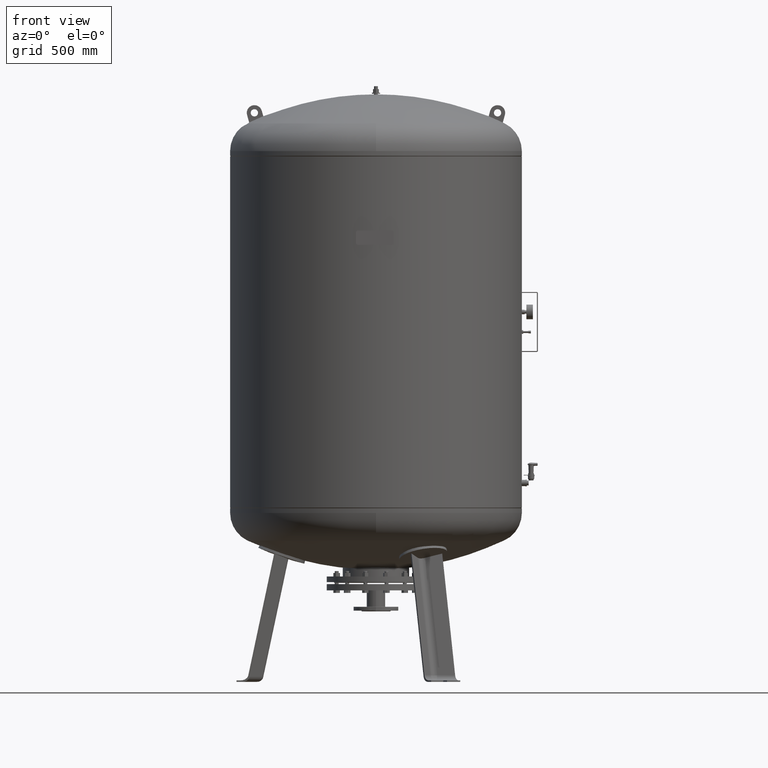
[diagram: clean part render]
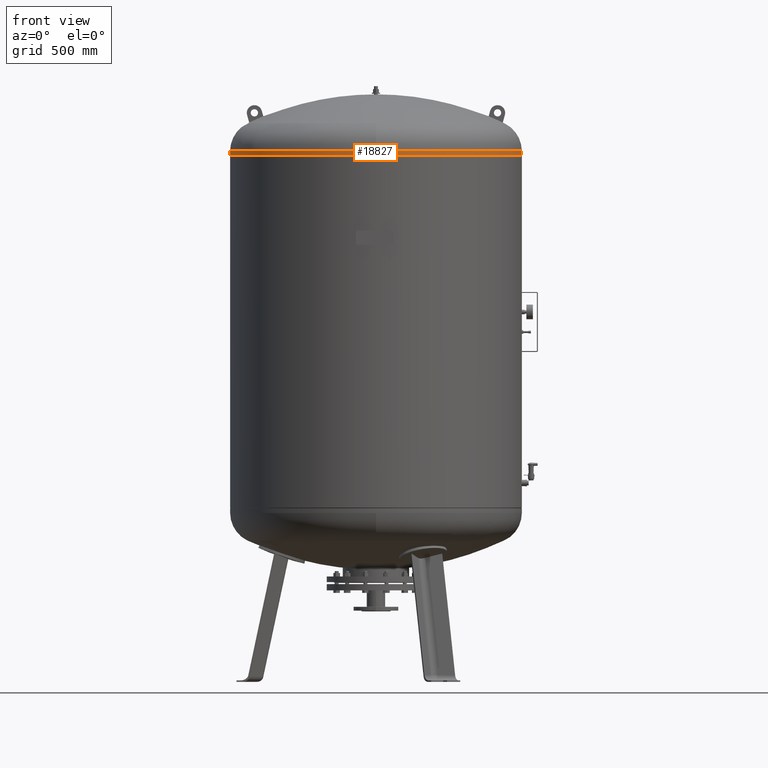
[diagram: same view with one face highlighted and labeled with its STEP entity id]
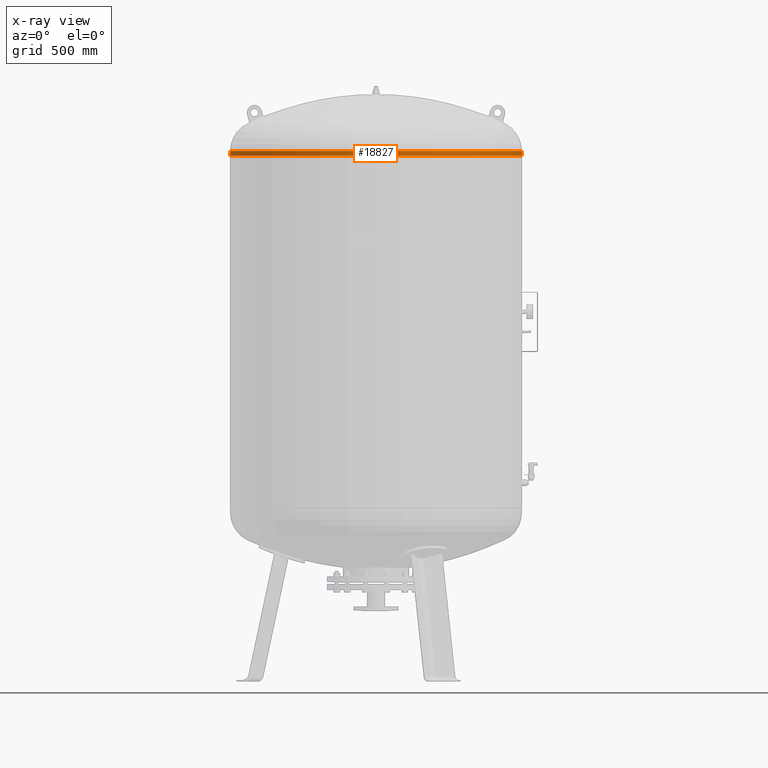
[diagram: x-ray of the same camera — body ghosted, the highlighted face saturated]
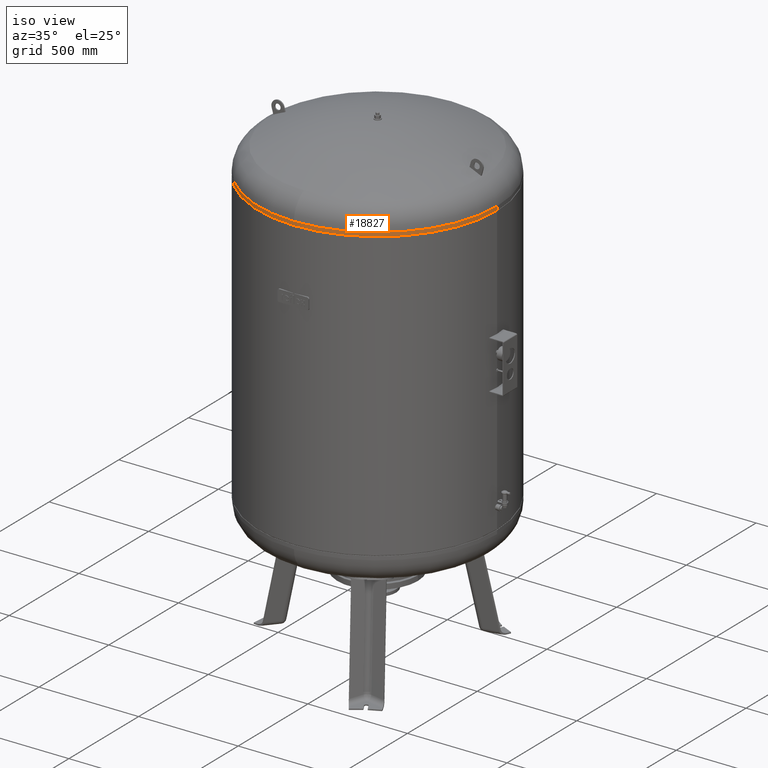
[diagram: same view with one face highlighted and labeled with its STEP entity id]
A machine part, front view. The second image highlights one B-rep face of the part: STEP entity #18827.
The next image is the same camera in x-ray: the body ghosted, the highlighted face saturated — about 0% of this face is hidden behind the body in this view.
A second angle (iso view) of the same face is appended — the face is thin or edge-on in the first view.
In plain terms, the highlighted cylindrical surface (partial cylindrical patch) has radius 600 mm, axis along (0, -0, -1).
Its self-contained STEP definition (entity closure, byte-faithful):
#18168=CARTESIAN_POINT('',(600.000000000000110,-4.684274E-014,2164.0));
#18169=VERTEX_POINT('',#18168);
#18170=CARTESIAN_POINT('',(600.0,-4.336858E-014,2182.912457433727900));
#18171=VERTEX_POINT('',#18170);
#18172=CARTESIAN_POINT('',(600.000000000000110,-4.684274E-014,2164.0));
#18173=DIRECTION('',(0.0,0.0,1.0));
#18174=VECTOR('',#18173,18.912457433727923);
#18175=LINE('',#18172,#18174);
#18176=EDGE_CURVE('',#18169,#18171,#18175,.T.);
#18178=CARTESIAN_POINT('',(-599.999999999999890,2.663364E-014,2164.0));
#18179=VERTEX_POINT('',#18178);
#18187=CARTESIAN_POINT('',(-599.999999999999890,3.010780E-014,2182.912457433727500));
#18188=VERTEX_POINT('',#18187);
#18189=CARTESIAN_POINT('',(-599.999999999999890,2.663364E-014,2164.0));
#18190=DIRECTION('',(0.0,0.0,1.0));
#18191=VECTOR('',#18190,18.912457433727468);
#18192=LINE('',#18189,#18191);
#18193=EDGE_CURVE('',#18179,#18188,#18192,.T.);
#18219=CARTESIAN_POINT('',(4.214189E-014,-600.0,2182.912457433727500));
#18220=VERTEX_POINT('',#18219);
#18230=CARTESIAN_POINT('',(6.604942E-015,-4.336858E-014,2182.912457433727500));
#18231=DIRECTION('',(0.0,0.0,-1.0));
#18232=DIRECTION('',(1.0,0.0,0.0));
#18233=AXIS2_PLACEMENT_3D('',#18230,#18231,#18232);
#18234=CIRCLE('',#18233,600.0);
#18235=EDGE_CURVE('',#18171,#18220,#18234,.T.);
#18799=CARTESIAN_POINT('',(6.604942E-015,-4.336858E-014,2182.912457433727500));
#18800=DIRECTION('',(0.0,0.0,-1.0));
#18801=DIRECTION('',(1.0,0.0,0.0));
#18802=AXIS2_PLACEMENT_3D('',#18799,#18800,#18801);
#18803=CIRCLE('',#18802,600.0);
#18804=EDGE_CURVE('',#18220,#18188,#18803,.T.);
#18809=CARTESIAN_POINT('',(6.869496E-015,-4.510566E-014,2173.456228716863700));
#18810=DIRECTION('',(2.797667E-017,-1.836970E-016,-1.0));
#18811=DIRECTION('',(1.0,0.0,0.0));
#18812=AXIS2_PLACEMENT_3D('',#18809,#18810,#18811);
#18813=CYLINDRICAL_SURFACE('',#18812,599.999999999999890);
#18814=ORIENTED_EDGE('',*,*,#18176,.T.);
#18815=ORIENTED_EDGE('',*,*,#18235,.T.);
#18816=ORIENTED_EDGE('',*,*,#18804,.T.);
#18817=ORIENTED_EDGE('',*,*,#18193,.F.);
#18818=CARTESIAN_POINT('',(7.134050E-015,-4.684274E-014,2164.0));
#18819=DIRECTION('',(0.0,0.0,-1.0));
#18820=DIRECTION('',(1.0,0.0,0.0));
#18821=AXIS2_PLACEMENT_3D('',#18818,#18819,#18820);
#18822=CIRCLE('',#18821,600.0);
#18823=EDGE_CURVE('',#18169,#18179,#18822,.T.);
#18824=ORIENTED_EDGE('',*,*,#18823,.F.);
#18825=EDGE_LOOP('',(#18814,#18815,#18816,#18817,#18824));
#18826=FACE_OUTER_BOUND('',#18825,.T.);
#18827=ADVANCED_FACE('',(#18826),#18813,.T.);